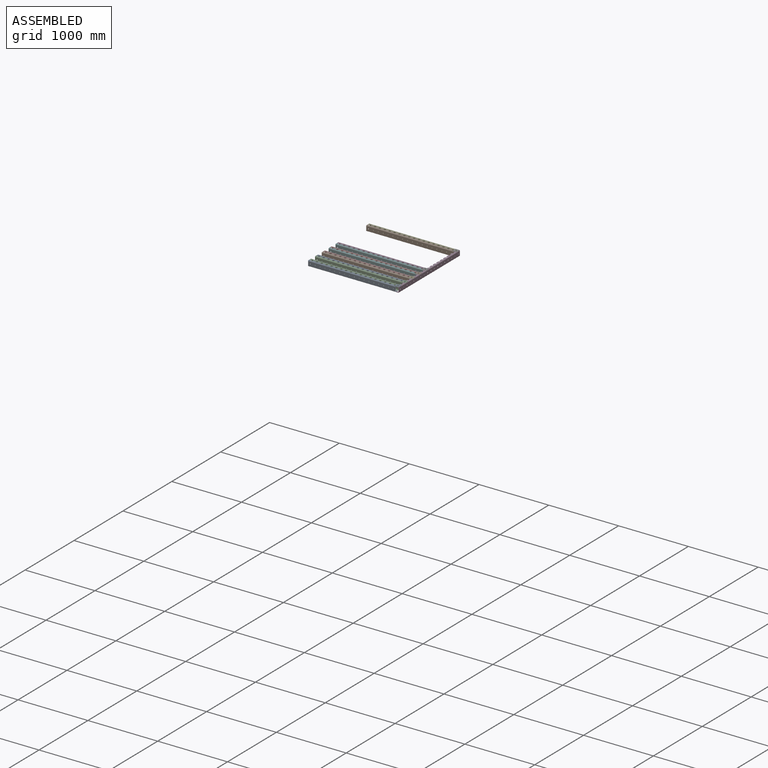
[diagram: assembled view]
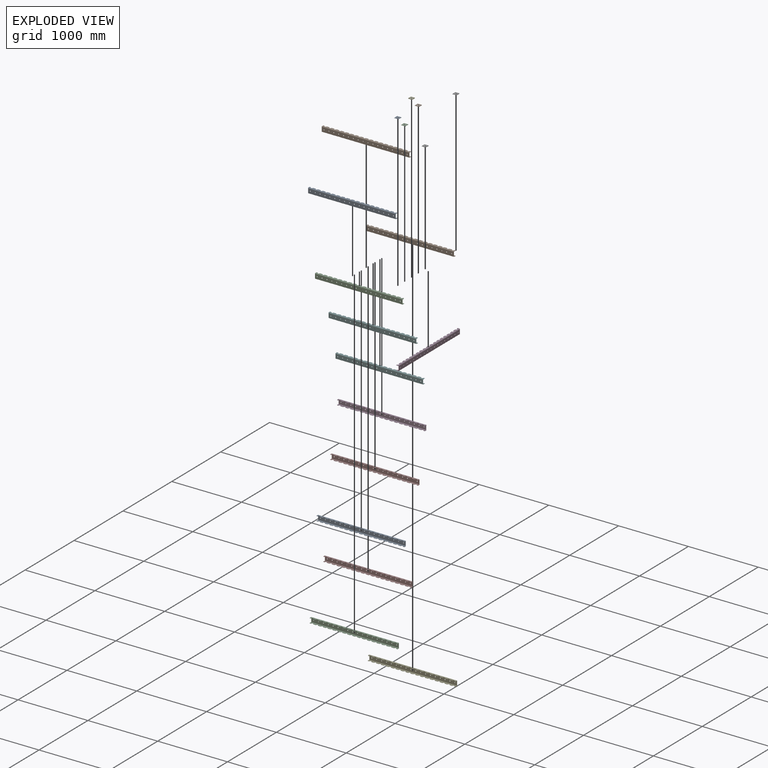
[diagram: exploded view]
GUIDED TOUR — MATED ASSEMBLY (Onshape document 4cd2c52025c3073a556f0b8e, AutoMate assembly 4cd2c52025c3073a556f0b8e_6bf84384672c39761e5be182_22425b978b289d6fd1bc3a5a_default)

This assembly has 19 components, labeled P0..P18 below (a component is one placed occurrence of a part; the same part can appear more than once), held together by 18 mates. A mate is a constraint between two components; its type names the relative motion it leaves free:
  FASTENED — locks the two components together rigidly (no relative motion).
Axis/direction vectors are unit vectors and 'through' points are millimeter coordinates, both in the assembly's world frame.

MATES
  1. FASTENED "Fastened 8": P4 <-> P11, direction (0.000, 0.000, -1.000) through (40.00, 280.00, 0.00) mm
  2. FASTENED "Fastened 9": P1 <-> P11, direction (0.000, 0.000, -1.000) through (40.00, 420.00, 0.00) mm
  3. FASTENED "Fastened 7": P2 <-> P11, direction (0.000, 0.000, -1.000) through (40.00, 140.00, 0.00) mm
  4. FASTENED "Fastened 2": P10 <-> P0, direction (0.000, 0.000, 1.000) through (0.00, 0.00, 0.00) mm
  5. FASTENED "Fastened 13": P13 <-> P14, direction (0.000, 0.000, 1.000) through (20.00, 540.00, 0.00) mm
  6. FASTENED "Fastened 2": P3 <-> P13, direction (0.000, 0.000, 1.000) through (0.00, 560.00, 0.00) mm
  7. FASTENED "Fastened 11": P18 <-> P2, direction (0.000, 0.000, 1.000) through (20.00, 120.00, 0.00) mm
  8. FASTENED "Fastened 5": P6 <-> P17, direction (0.000, 0.000, -1.000) through (20.00, 1170.00, 0.00) mm
  9. FASTENED "Fastened 10": P14 <-> P11, direction (0.000, 0.000, -1.000) through (40.00, 560.00, 0.00) mm
  10. FASTENED "Fastened 6": P6 <-> P11, direction (0.000, 0.000, 1.000) through (60.00, 1170.00, 0.00) mm
  11. FASTENED "Fastened 4": P16 <-> P11, direction (0.000, 0.000, -1.000) through (60.00, -20.00, 0.00) mm
  12. FASTENED "Fastened 2": P15 <-> P9, direction (0.000, 0.000, 1.000) through (0.00, 280.00, 0.00) mm
  13. FASTENED "Fastened 2": P12 <-> P17, direction (0.000, 0.000, 1.000) through (0.00, 1190.00, 0.00) mm
  14. FASTENED "Fastened 2": P8 <-> P18, direction (0.000, 0.000, 1.000) through (0.00, 140.00, 0.00) mm
  15. FASTENED "Fastened 14": P5 <-> P1, direction (0.000, 0.000, 1.000) through (20.00, 400.00, 0.00) mm
  16. FASTENED "Fastened 2": P7 <-> P5, direction (0.000, 0.000, 1.000) through (0.00, 420.00, 0.00) mm
  17. FASTENED "Fastened 12": P9 <-> P4, direction (0.000, 0.000, 1.000) through (20.00, 260.00, 0.00) mm
  18. FASTENED "Fastened 3": P16 <-> P10, direction (0.000, 0.000, -1.000) through (20.00, 20.00, 0.00) mm

ASSEMBLY ORDER
  1. P17 — the base component [order verified]
  2. P0 [order verified]
  3. P9 [order verified]
  4. P5 [order verified]
  5. P13 [order verified]
  6. P18 [order verified]
  7. P3 [order verified]
  8. P7 [order verified]
  9. P8 [order verified]
  10. P15 [order verified]
  11. P10 [order verified]
  12. P12 [order verified]
  13. P11 [order verified]
  14. P14 [order verified]
  15. P1 [order verified]
  16. P16 [order verified]
  17. P4 [order verified]
  18. P2 [order verified]
  19. P6 [order verified]
Order-tag legend:
  [order verified] — this step's position reverses a verified removal order: the component was checked to insert without passing through the ones already placed.

Of the 19 components, 6 carry the full construction recipe — the FeatureScript program that regenerates the part's solid from scratch; the rest are supplied as boundary geometry only.
Because this assembly has more than 12 components, the tour below covers the 12 most significant ones individually (every recipe-attached component first, then the largest by part volume), in assembly order; the remaining 7 are summarized together in a grouped section at the end.
Each toured component is shown spotlighted twice — in the assembled view, then in the exploded view, where a leader line traces a displaced component back to its assembled socket (saturated green if recipe-attached, orange if geometry-only; every other component desaturated gray) — followed by its recipe or geometry summary and the mates that hold it.
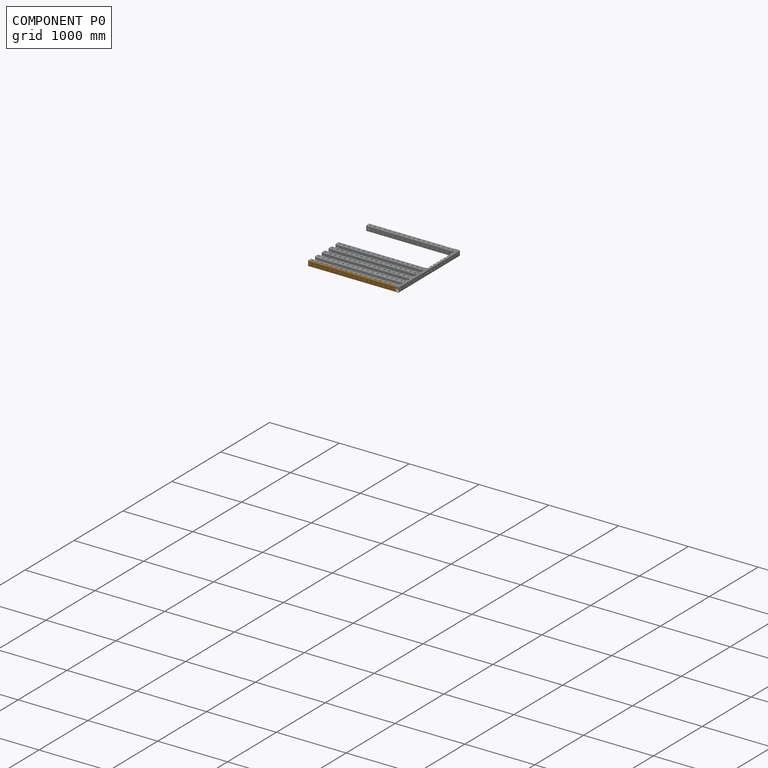
[diagram: component P0 — assembled]
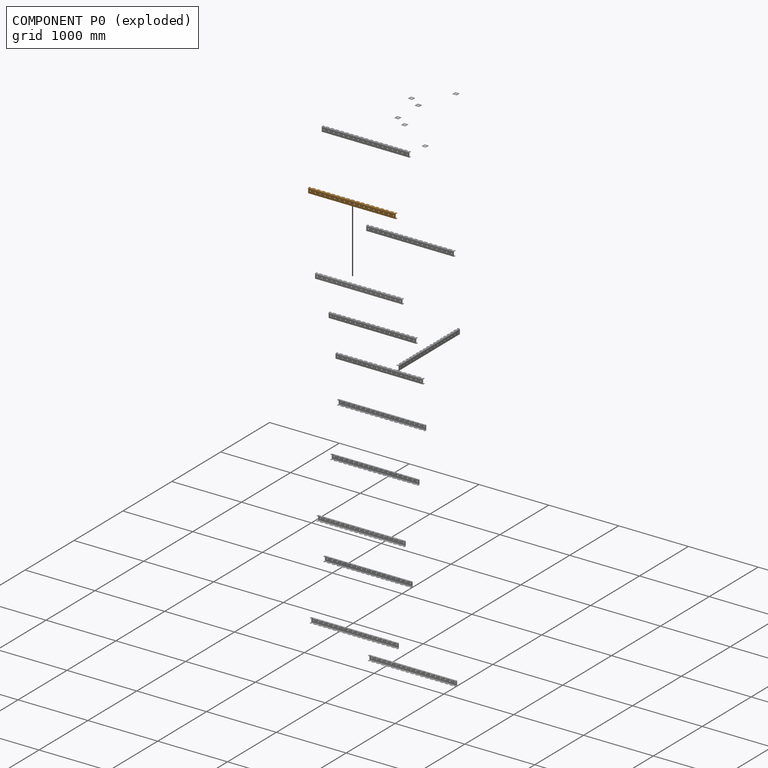
[diagram: component P0 — exploded]
COMPONENT P0 — geometry summary (no construction recipe available for this part):
  bounding box: 1260.0 x 70.0 x 35.0 mm
  B-rep topology: 1 solid, 548 faces, 2592 edges
  volume: 444610 mm^3 (14% of its bounding box)
  symmetry: 2-fold rotationally symmetric about the y axis; mirror-symmetric across its x mid-plane, z mid-plane
Held by: FASTENED mate "Fastened 2" to P10.
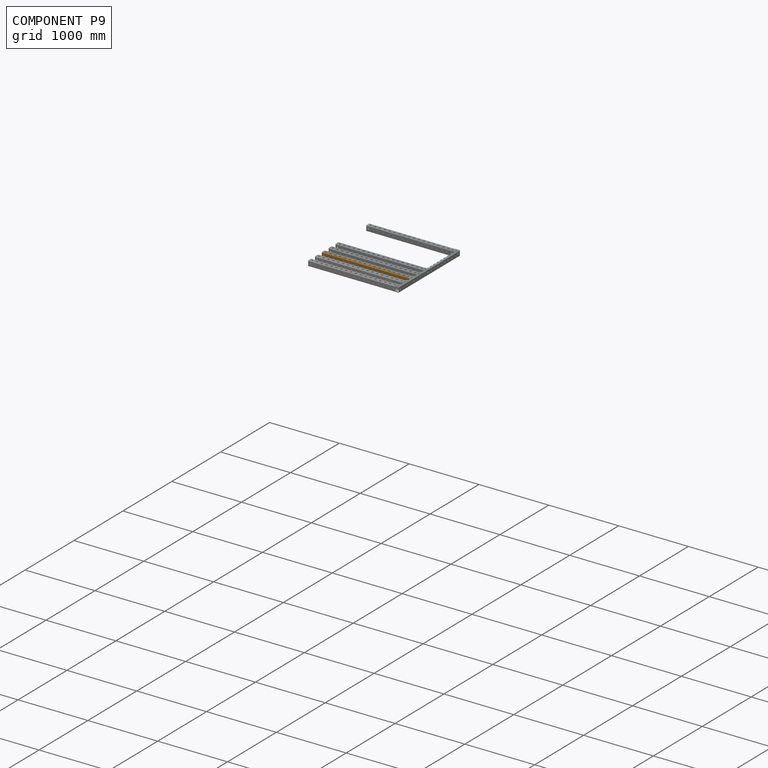
[diagram: component P9 — assembled]
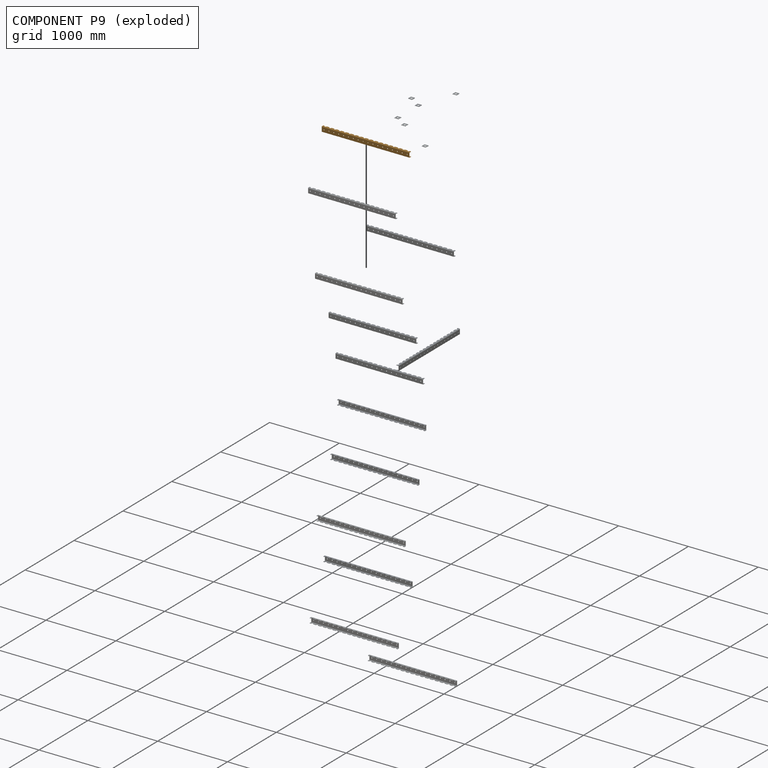
[diagram: component P9 — exploded]
COMPONENT P9 — geometry summary (no construction recipe available for this part):
  bounding box: 1260.0 x 70.0 x 35.0 mm
  B-rep topology: 1 solid, 548 faces, 2592 edges
  volume: 444610 mm^3 (14% of its bounding box)
  symmetry: 2-fold rotationally symmetric about the y axis; mirror-symmetric across its x mid-plane, z mid-plane
Held by: FASTENED mate "Fastened 2" to P15; FASTENED mate "Fastened 12" to P4.
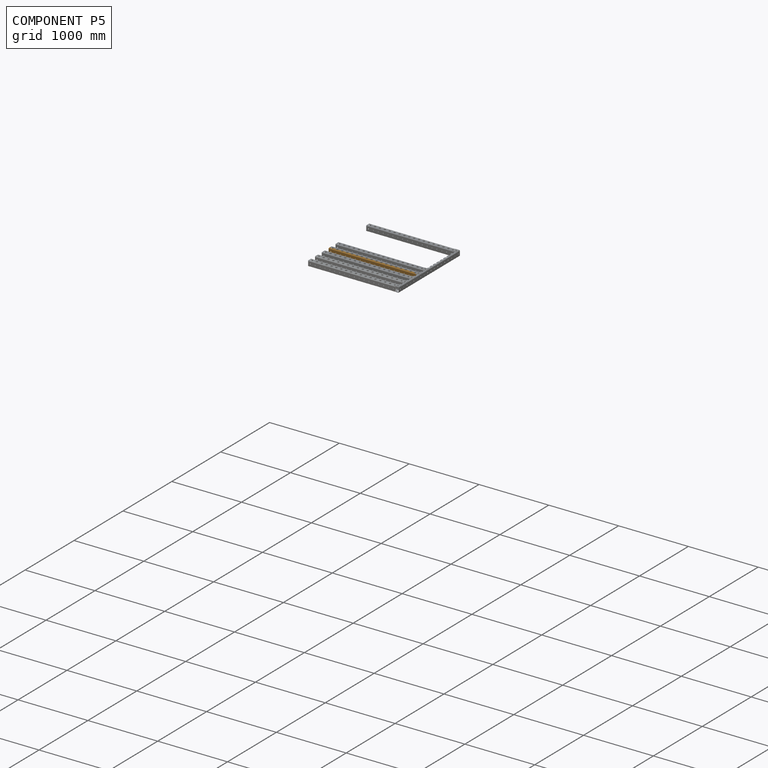
[diagram: component P5 — assembled]
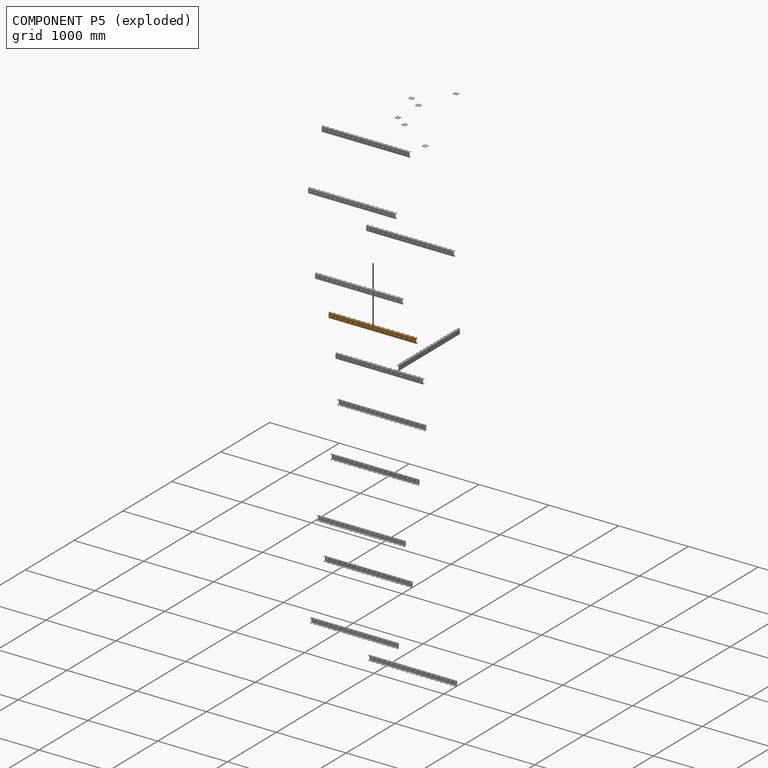
[diagram: component P5 — exploded]
COMPONENT P5 — geometry summary (no construction recipe available for this part):
  bounding box: 1260.0 x 70.0 x 35.0 mm
  B-rep topology: 1 solid, 548 faces, 2592 edges
  volume: 444610 mm^3 (14% of its bounding box)
  symmetry: 2-fold rotationally symmetric about the y axis; mirror-symmetric across its x mid-plane, z mid-plane
Held by: FASTENED mate "Fastened 14" to P1; FASTENED mate "Fastened 2" to P7.
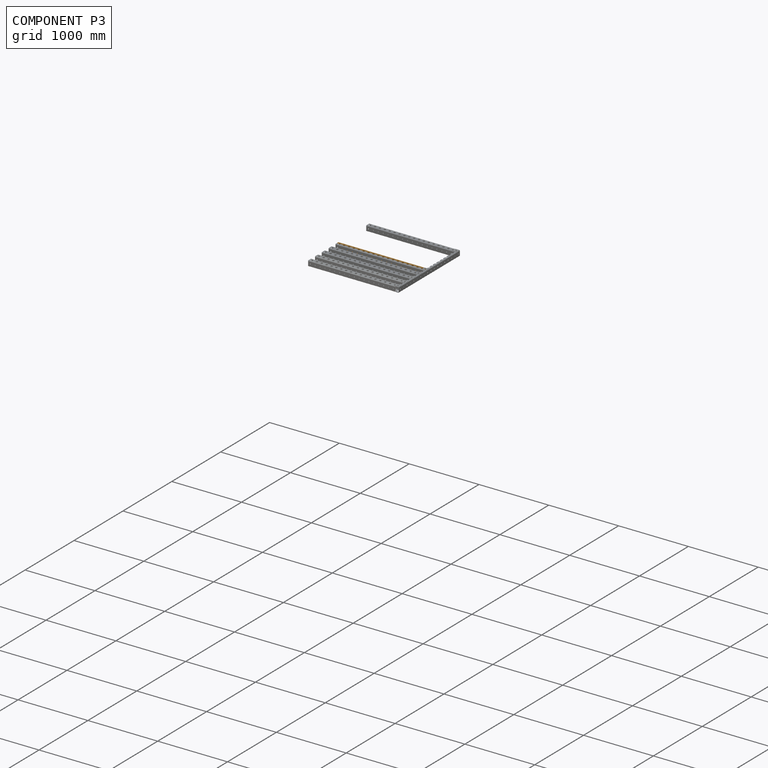
[diagram: component P3 — assembled]
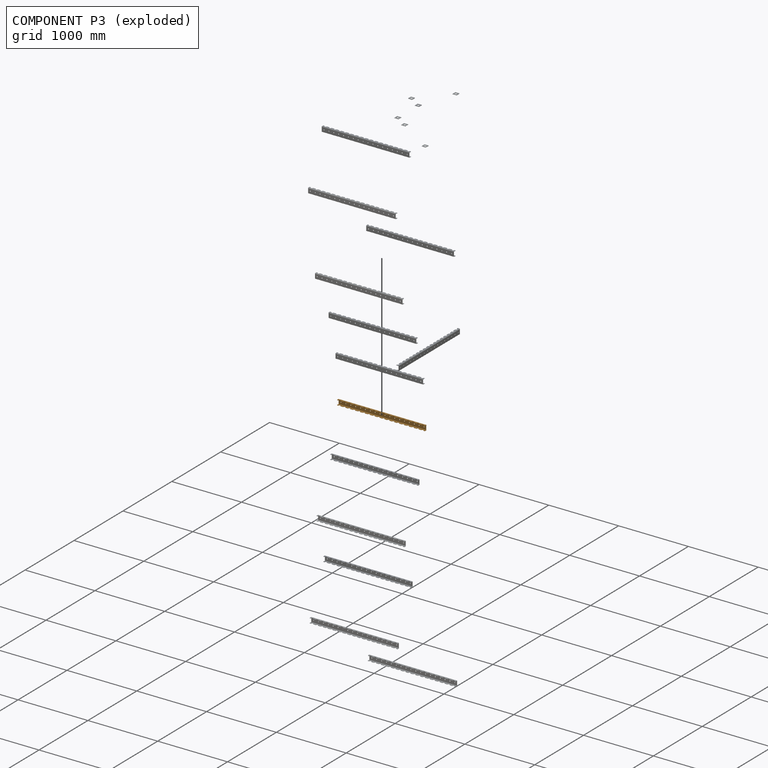
[diagram: component P3 — exploded]
COMPONENT P3 — geometry summary (no construction recipe available for this part):
  bounding box: 1260.0 x 70.0 x 35.0 mm
  B-rep topology: 1 solid, 548 faces, 2592 edges
  volume: 444610 mm^3 (14% of its bounding box)
  symmetry: 2-fold rotationally symmetric about the y axis; mirror-symmetric across its x mid-plane, z mid-plane
Held by: FASTENED mate "Fastened 2" to P13.
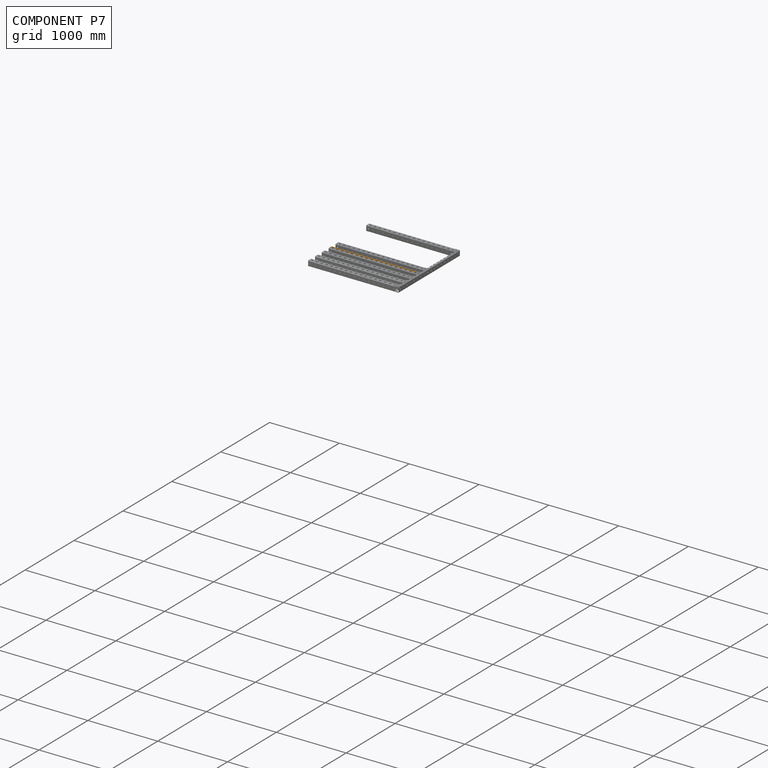
[diagram: component P7 — assembled]
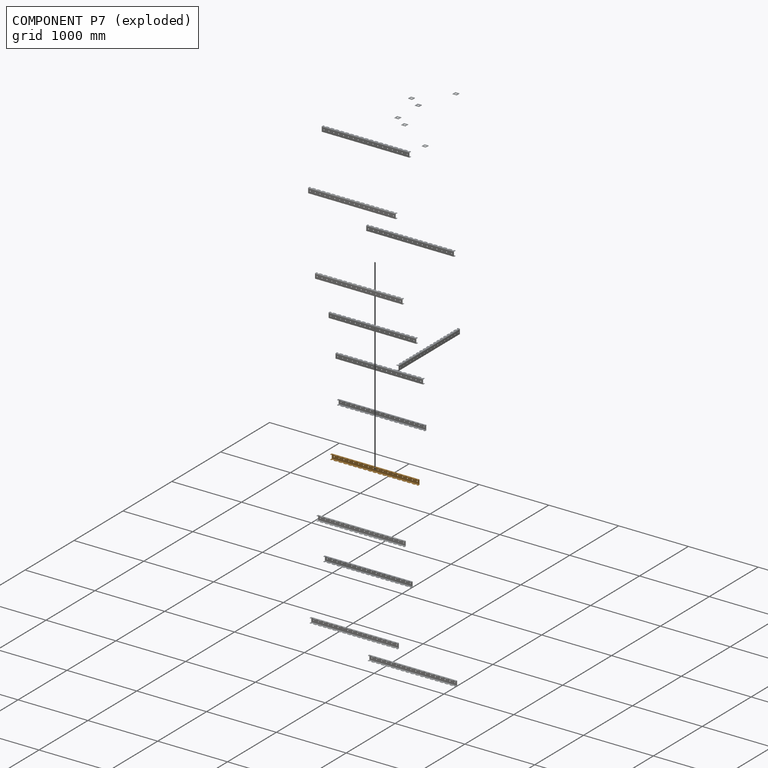
[diagram: component P7 — exploded]
COMPONENT P7 — geometry summary (no construction recipe available for this part):
  bounding box: 1260.0 x 70.0 x 35.0 mm
  B-rep topology: 1 solid, 548 faces, 2592 edges
  volume: 444610 mm^3 (14% of its bounding box)
  symmetry: 2-fold rotationally symmetric about the y axis; mirror-symmetric across its x mid-plane, z mid-plane
Held by: FASTENED mate "Fastened 2" to P5.
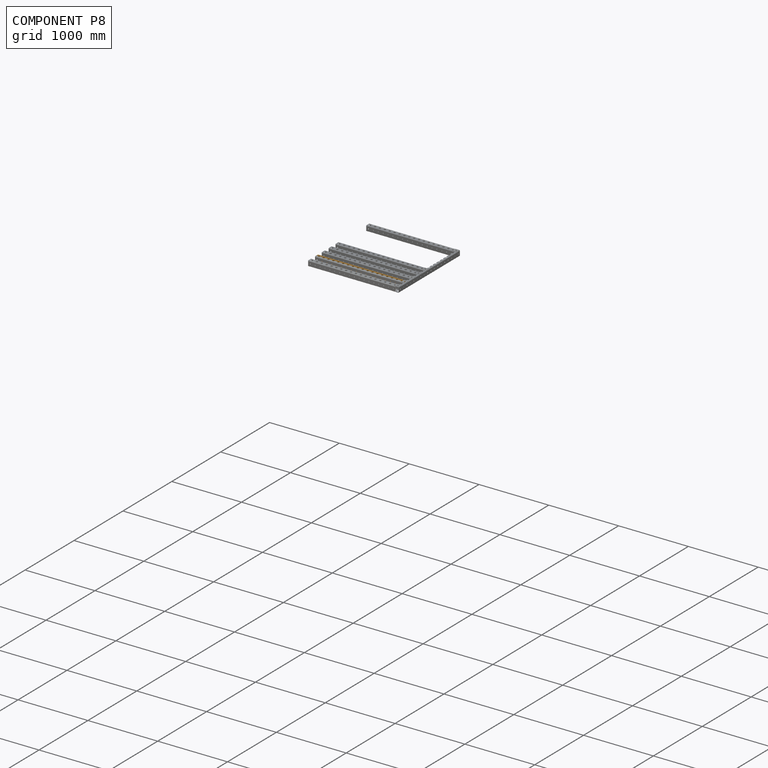
[diagram: component P8 — assembled]
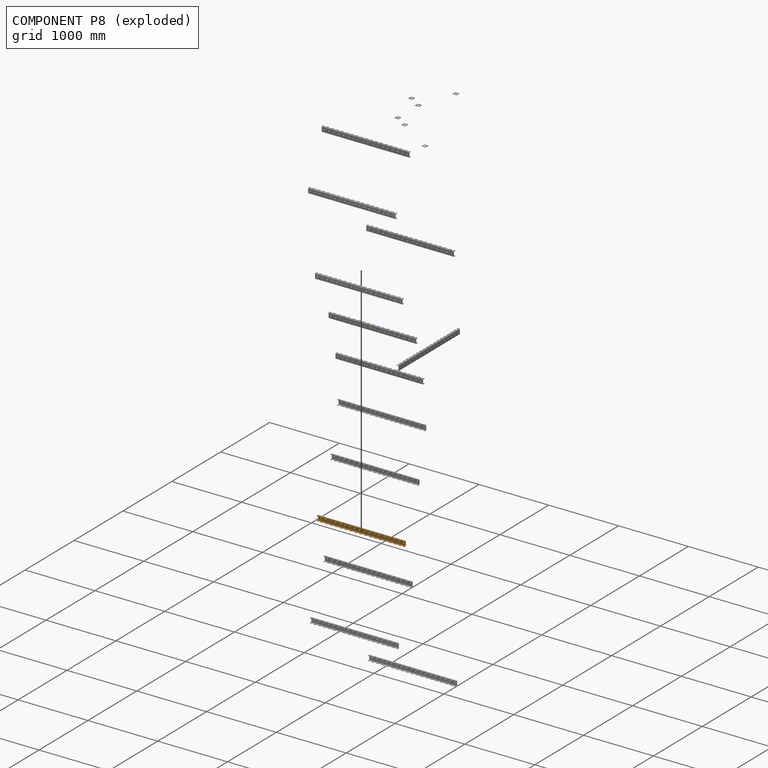
[diagram: component P8 — exploded]
COMPONENT P8 — geometry summary (no construction recipe available for this part):
  bounding box: 1260.0 x 70.0 x 35.0 mm
  B-rep topology: 1 solid, 548 faces, 2592 edges
  volume: 444610 mm^3 (14% of its bounding box)
  symmetry: 2-fold rotationally symmetric about the y axis; mirror-symmetric across its x mid-plane, z mid-plane
Held by: FASTENED mate "Fastened 2" to P18.
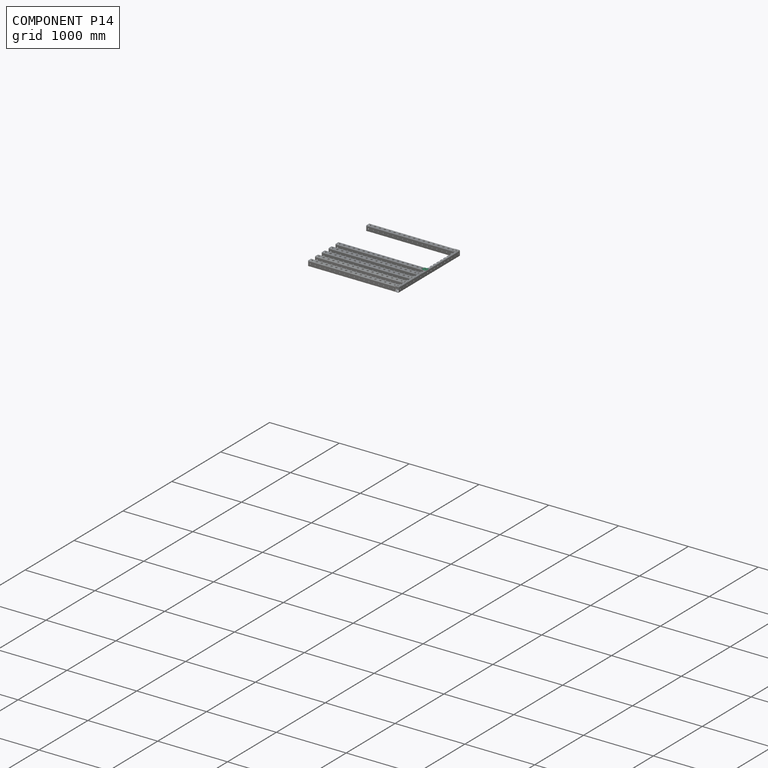
[diagram: component P14 — assembled]
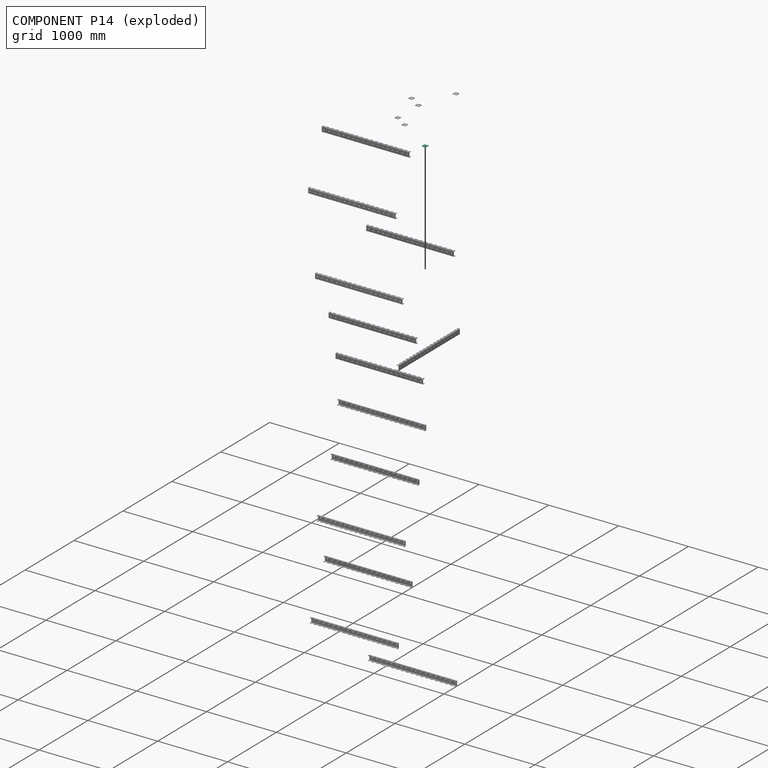
[diagram: component P14 — exploded]
COMPONENT P14 — same part as P1 (CADFS 00451484); its construction recipe is shown at P1.
Held by: FASTENED mate "Fastened 13" to P13; FASTENED mate "Fastened 10" to P11.
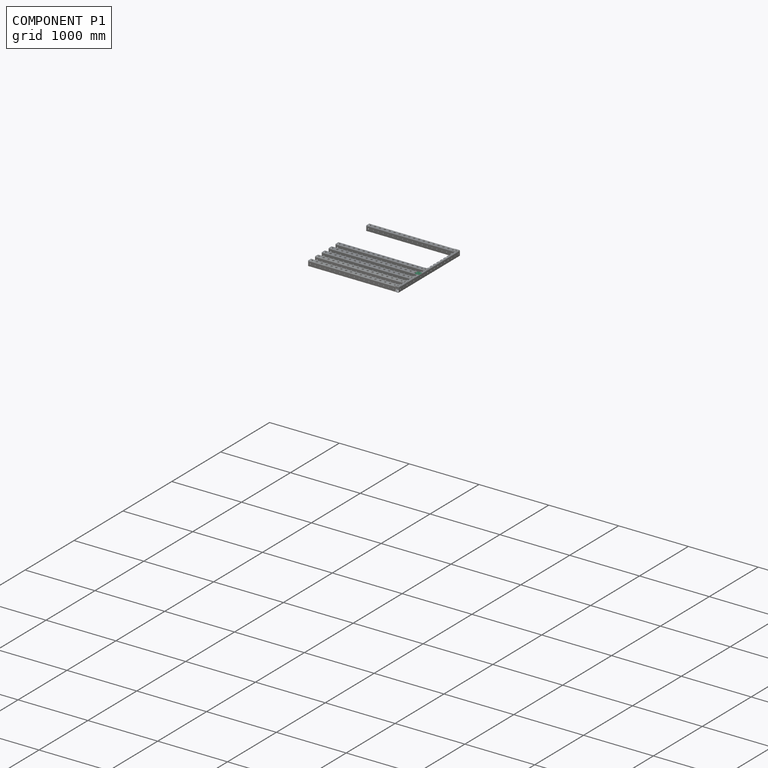
[diagram: component P1 — assembled]
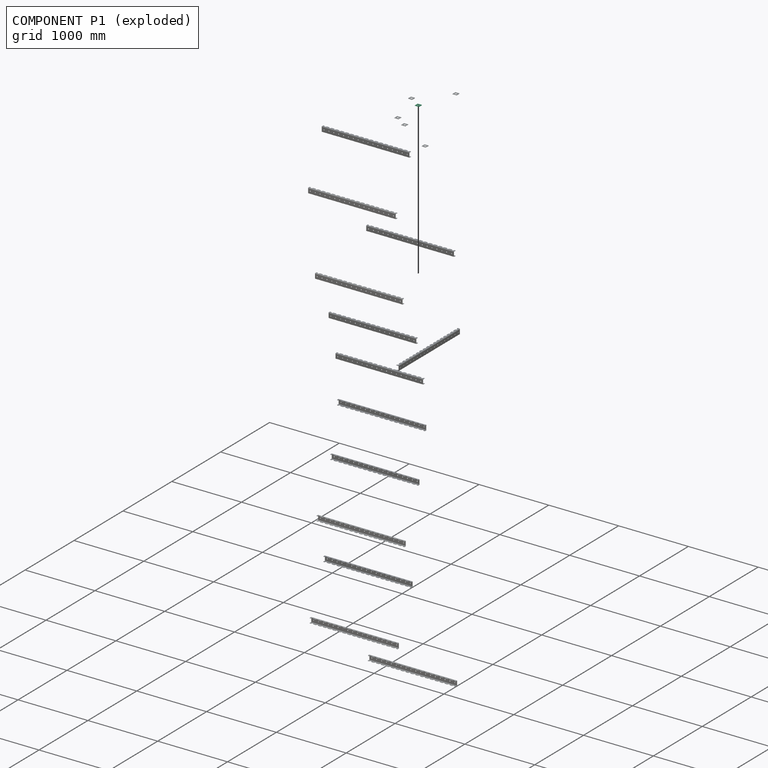
[diagram: component P1 — exploded]
COMPONENT P1 — recipe-attached (CADFS 00451484, mesh-verified: the recipe's output STEP matches this component's geometry to below the mesh-comparison resolution (tessellation chordal tolerance ~0.132 mm)).
Held by: FASTENED mate "Fastened 9" to P11; FASTENED mate "Fastened 14" to P5.
Construction recipe (FeatureScript — the CAD program that rebuilds this solid; sketch coordinates are in the units given by the * unit suffixes, e.g. mm):

FeatureScript 2625;
import(path : "onshape/std/geometry.fs", version : "2625.0");
import(path : "onshape/std/common.fs", version : "2625.0");
const mm = millimeter;
const VERTEX = EntityType.VERTEX;
const EDGE = EntityType.EDGE;
const FACE = EntityType.FACE;
const BODY = EntityType.BODY;
function v(x, y){return vector(x, y);}
function OD(order){return orderDisambiguation(order);}
function OSD(set){return originalSetDisambiguation(set);}
function TD(topology){return topologyDisambiguation(topology);}
function TDD(query){return trueDependencyDisambiguation(query);}
function sQuery(a, b, c) {return sketchEntityQuery(a, b, c);}

annotation { "Feature Type Name" : "Feature", "Feature Type Description" : "" }
export const myFeature = defineFeature(function(context is Context, id is Id, definition is map)
    precondition{}
    {
        {
            var Q0;
            Q0=qCreatedBy(makeId("Top.planeOp"),FACE);
            var sketch = newSketch(context, id + "F0", { "sketchPlane" : qUnion([Q0])});
            skLineSegment(sketch, "E0.bottom", {"start": v(31, -31) * mm, "end": v(-31, -31) * mm});
            skLineSegment(sketch, "E0.top", {"start": v(31, 31) * mm, "end": v(-31, 31) * mm});
            skLineSegment(sketch, "E0.left", {"start": v(31, -31) * mm, "end": v(31, 31) * mm});
            skLineSegment(sketch, "E0.right", {"start": v(-31, -31) * mm, "end": v(-31, 31) * mm});
            skPoint(sketch, "E0.middle", {"position": v(0, 0) * mm});
            skSolve(sketch);
        }
        {
            var Q0;
            Q0=qSketchRegion(id+"F0",true);
            extrude(context, id + "F1", {"entities" : qUnion([Q0]), "depth" : 3 * mm});
        }
        {
            var Q0;
            Q0=makeQuery(id+"F1.opExtrude","CAP_FACE",FACE,{"disambiguationData":[OSD([sQuery(id+"F0.wireOp",EDGE,"E0.bottom"),sQuery(id+"F0.wireOp",EDGE,"E0.top"),sQuery(id+"F0.wireOp",EDGE,"E0.left"),sQuery(id+"F0.wireOp",EDGE,"E0.right")])],"isStart":false});
            var sketch = newSketch(context, id + "F2", { "sketchPlane" : qUnion([Q0])});
            skCircle(sketch, "E1", {"center": v(-20, 20) * mm, "radius": 3.5 * mm});
            skCircle(sketch, "E2.1.0", {"center": v(20, 20) * mm, "radius": 3.5 * mm});
            skCircle(sketch, "E2.2.0", {"center": v(20, -20) * mm, "radius": 3.5 * mm});
            skCircle(sketch, "E2.3.0", {"center": v(-20, -20) * mm, "radius": 3.5 * mm});
            skPoint(sketch, "E2.center", {"position": v(0, 0) * mm});
            skLineSegment(sketch, "E2.anchor1", {"start": v(0, 0) * mm, "end": v(-20, 20) * mm, "construction": true});
            skLineSegment(sketch, "E2.anchor2", {"start": v(0, 0) * mm, "end": v(-20, -20) * mm, "construction": true});
            skCircle(sketch, "E3", {"center": v(0, 0) * mm, "radius": 12.75 * mm});
            skSolve(sketch);
        }
        {
            var Q0;
            Q0=qSketchRegion(id+"F2",true);
            extrude(context, id + "F3", {"entities" : qUnion([Q0]), "operationType" : NewBodyOperationType.REMOVE, "oppositeDirection" : true, "depth" : 25 * mm});
        }
        {
            var Q0;
            Q0=makeQuery(id+"F1.opExtrude","SWEPT_EDGE",EDGE,{"disambiguationData":[OSD([sQuery(id+"F0.wireOp",EDGE,"E0.top"),sQuery(id+"F0.wireOp",EDGE,"E0.right")])]});
            var Q1;
            Q1=makeQuery(id+"F1.opExtrude","SWEPT_EDGE",EDGE,{"disambiguationData":[OSD([sQuery(id+"F0.wireOp",EDGE,"E0.top"),sQuery(id+"F0.wireOp",EDGE,"E0.left")])]});
            var Q2;
            Q2=makeQuery(id+"F1.opExtrude","SWEPT_EDGE",EDGE,{"disambiguationData":[OSD([sQuery(id+"F0.wireOp",EDGE,"E0.bottom"),sQuery(id+"F0.wireOp",EDGE,"E0.right")])]});
            var Q3;
            Q3=makeQuery(id+"F1.opExtrude","SWEPT_EDGE",EDGE,{"disambiguationData":[OSD([sQuery(id+"F0.wireOp",EDGE,"E0.bottom"),sQuery(id+"F0.wireOp",EDGE,"E0.left")])]});
            fillet(context, id + "F4", {"entities" : qUnion([Q0, Q1, Q2, Q3]), "radius" : 3 * mm, "tangentPropagation" : true, "allowEdgeOverflow" : false});
        }
    });
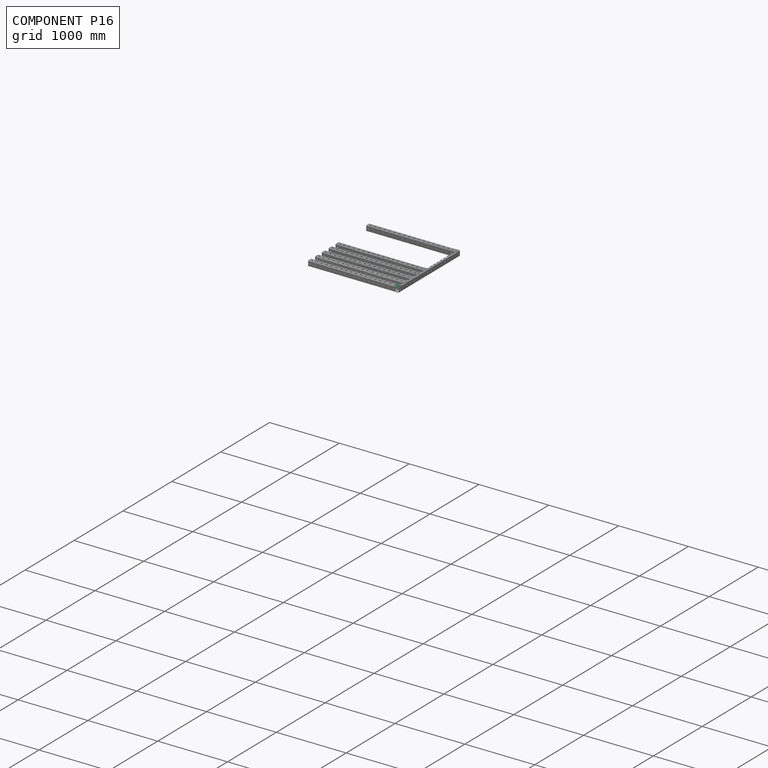
[diagram: component P16 — assembled]
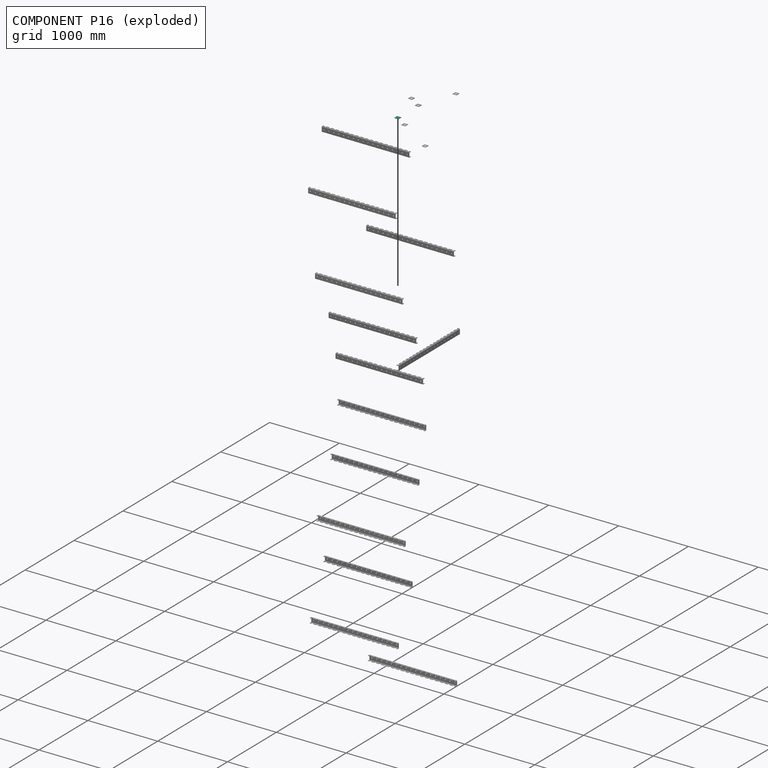
[diagram: component P16 — exploded]
COMPONENT P16 — same part as P1 (CADFS 00451484); its construction recipe is shown at P1.
Held by: FASTENED mate "Fastened 4" to P11; FASTENED mate "Fastened 3" to P10.
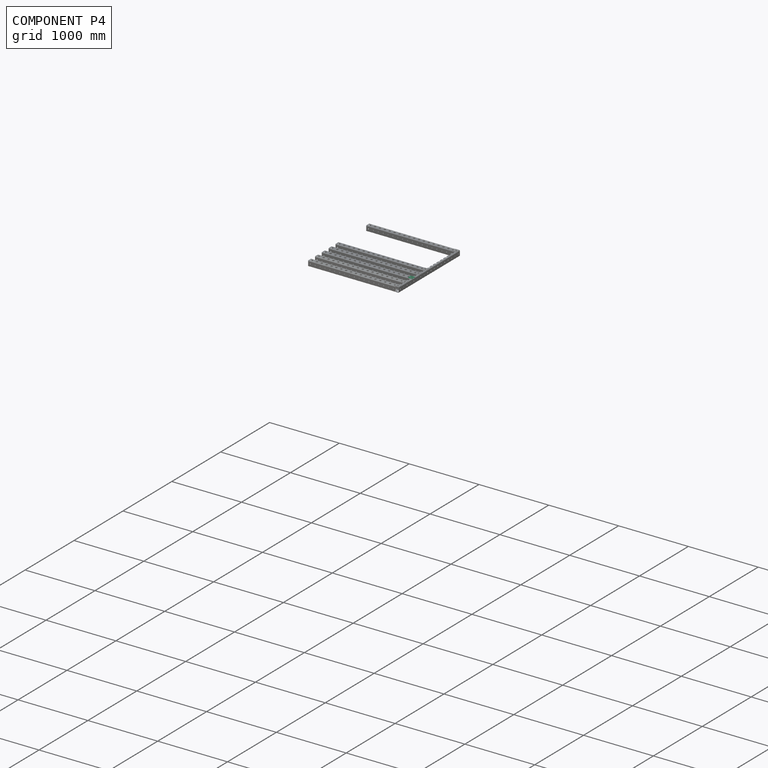
[diagram: component P4 — assembled]
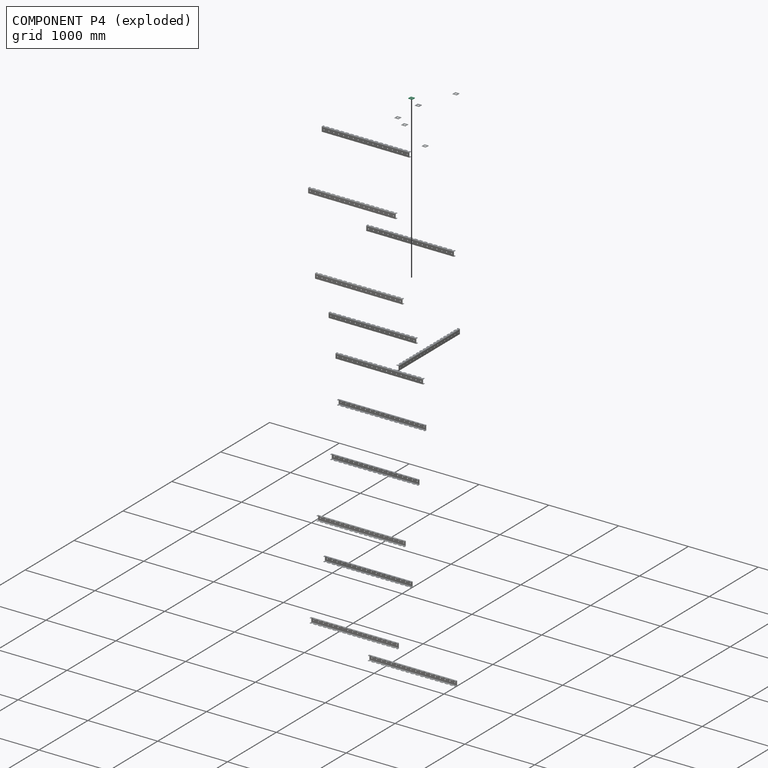
[diagram: component P4 — exploded]
COMPONENT P4 — same part as P1 (CADFS 00451484); its construction recipe is shown at P1.
Held by: FASTENED mate "Fastened 8" to P11; FASTENED mate "Fastened 12" to P9.
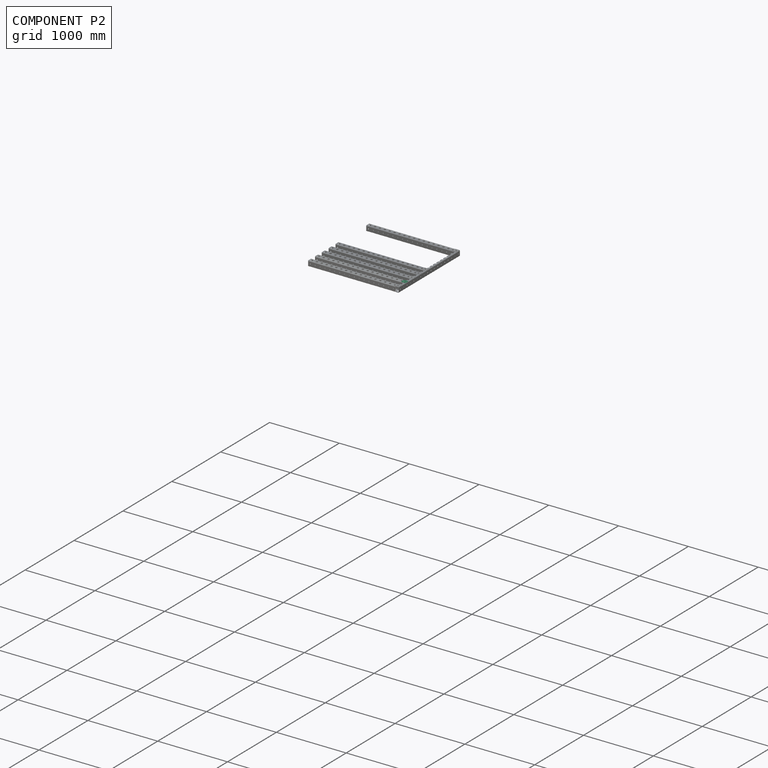
[diagram: component P2 — assembled]
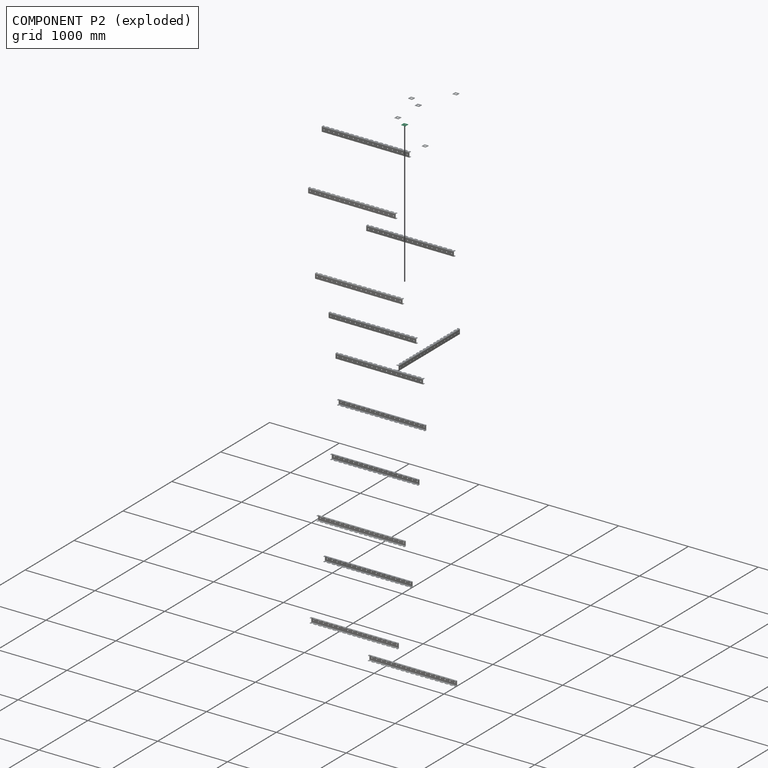
[diagram: component P2 — exploded]
COMPONENT P2 — same part as P1 (CADFS 00451484); its construction recipe is shown at P1.
Held by: FASTENED mate "Fastened 7" to P11; FASTENED mate "Fastened 11" to P18.
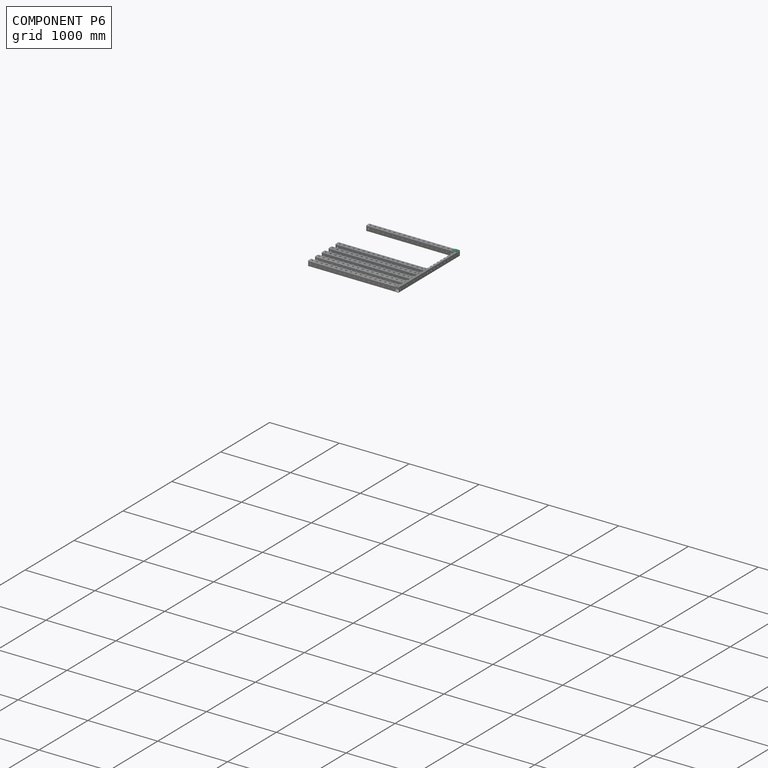
[diagram: component P6 — assembled]
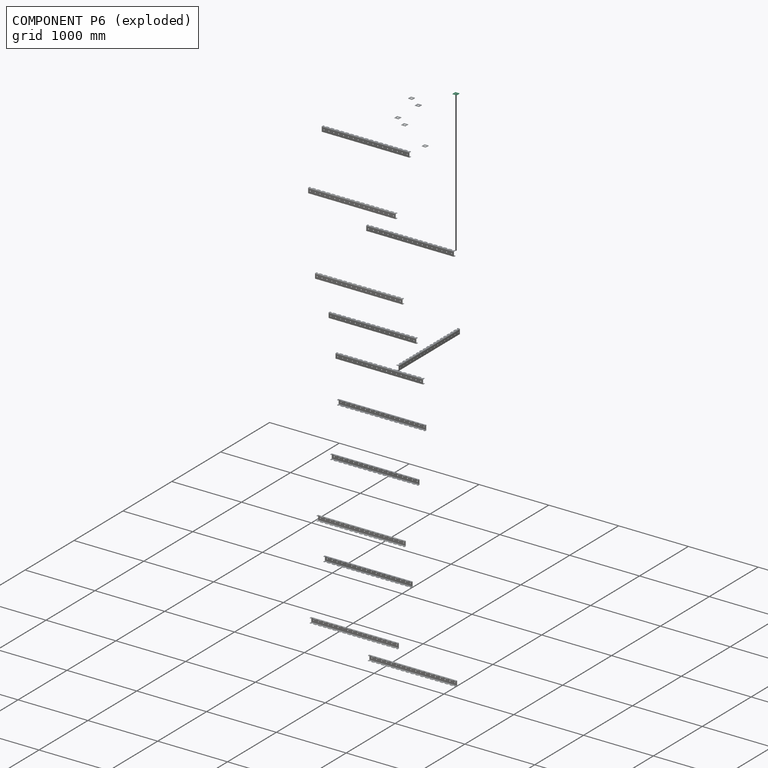
[diagram: component P6 — exploded]
COMPONENT P6 — same part as P1 (CADFS 00451484); its construction recipe is shown at P1.
Held by: FASTENED mate "Fastened 5" to P17; FASTENED mate "Fastened 6" to P11.
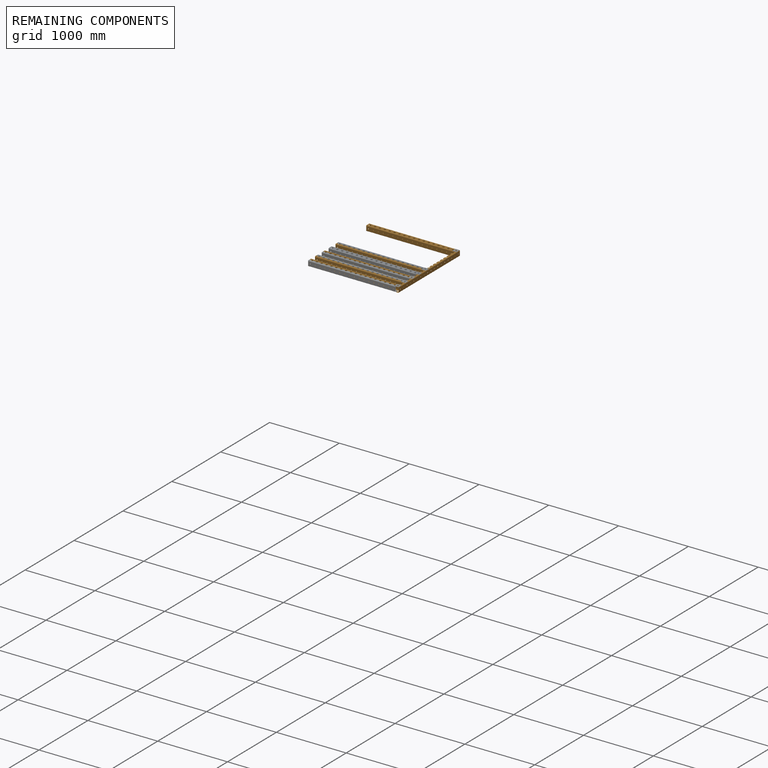
[diagram: remaining components — assembled]
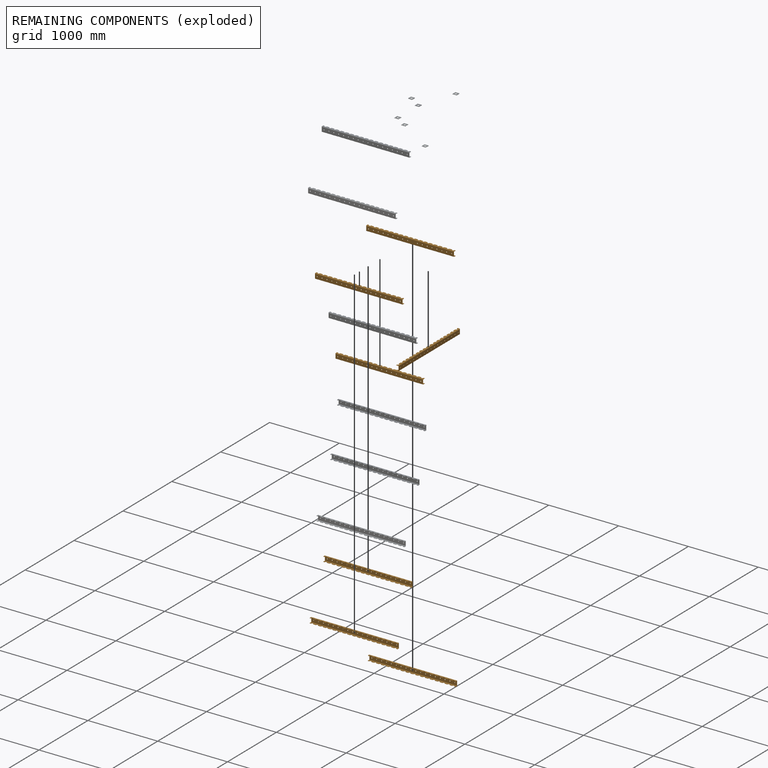
[diagram: remaining components — exploded]
REMAINING COMPONENTS (grouped) — the 7 components below fall outside the per-component tour by the significance rule stated above; both spotlight views highlight the whole group.
  P17: bounding box 1260.0 x 70.0 x 35.0 mm, volume 444610 mm^3. Held by: FASTENED mate "Fastened 5" to P6; FASTENED mate "Fastened 2" to P12.
  P13: bounding box 1260.0 x 70.0 x 35.0 mm, volume 444610 mm^3. Held by: FASTENED mate "Fastened 13" to P14; FASTENED mate "Fastened 2" to P3.
  P18: bounding box 1260.0 x 70.0 x 35.0 mm, volume 444610 mm^3. Held by: FASTENED mate "Fastened 11" to P2; FASTENED mate "Fastened 2" to P8.
  P15: bounding box 1260.0 x 70.0 x 35.0 mm, volume 444610 mm^3. Held by: FASTENED mate "Fastened 2" to P9.
  P10: bounding box 1260.0 x 70.0 x 35.0 mm, volume 444610 mm^3. Held by: FASTENED mate "Fastened 2" to P0; FASTENED mate "Fastened 3" to P16.
  P12: bounding box 1260.0 x 70.0 x 35.0 mm, volume 444610 mm^3. Held by: FASTENED mate "Fastened 2" to P17.
  P11: bounding box 1260.0 x 70.0 x 35.0 mm, volume 444610 mm^3. Held by: FASTENED mate "Fastened 8" to P4; FASTENED mate "Fastened 9" to P1; FASTENED mate "Fastened 7" to P2; FASTENED mate "Fastened 10" to P14; FASTENED mate "Fastened 6" to P6; FASTENED mate "Fastened 4" to P16.
PROVENANCE & LICENSES
Assembly (occurrences, transforms, mates, per-part STEP geometry): AutoMate dataset, Zenodo record 7776208, CC0.
Construction recipes: CADFS (HuggingFace VladPyatov/CADFS, CC-BY-4.0, layered over the ABC dataset), FeatureScript reconstruction programs keyed by ABC model id.
Join: ABC meta listings map ABC model id -> Onshape documentId; within a shared document, parts are matched by geometric signature (bounding-box dims + volume at 0.1% relative tolerance, exact B-rep face/solid counts).
Verification: 6 of this assembly's 19 components carry a recipe attachment, and every attachment is mesh-verified: the CADFS STEP and the AutoMate member STEP were compared as meshes in their shared local frame (symmetric sampled-point-to-mesh distance); worst across the 6 attachments: below the mesh-comparison resolution (tessellation chordal tolerance ~0.132 mm) on a 88 mm part.
Renders: orthographic iso camera (az 35 / el 25); the floor grid conveys scale (grid pitch printed in each image; no ruler). In the exploded view each component is displaced by its stored offset vector: the offsets alone carry the explosion direction (mate normal/axis signs are not orientation cues and do not encode it), and separation distances are assigned per mate-chain, not proportionally to assembly-order depth.
